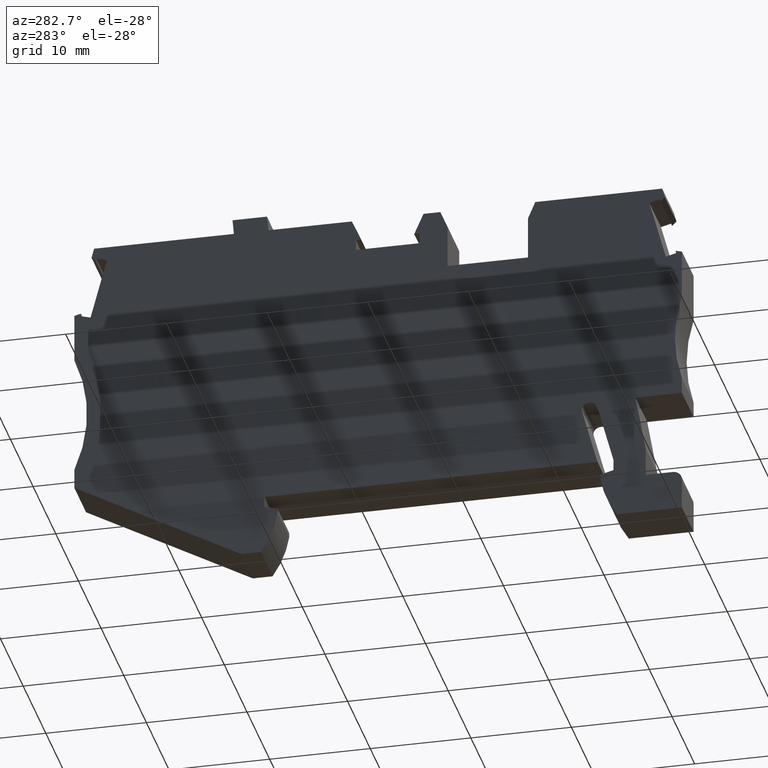
[diagram: clean part render]
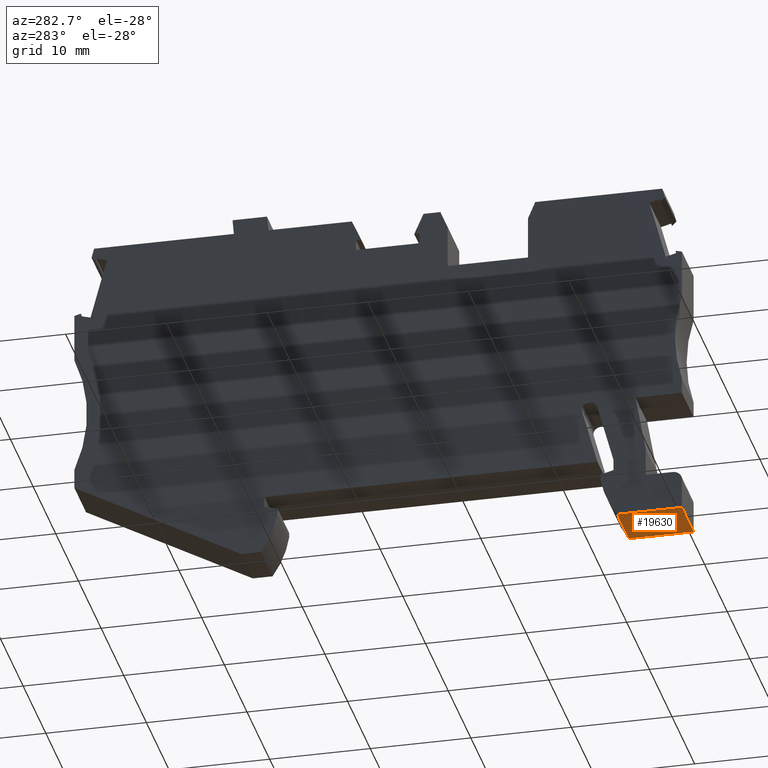
[diagram: same view with one face highlighted and labeled with its STEP entity id]
A machine part, auxiliary view. The second image highlights one B-rep face of the part: STEP entity #19630.
In plain terms, the highlighted planar face has unit normal (0, 0, -1).
Its self-contained STEP definition (entity closure, byte-faithful):
#3790=CARTESIAN_POINT('',(-15.9267764314572,-44.4000000000014,
53.6699999999896));
#3800=VERTEX_POINT('',#3790);
#3830=CARTESIAN_POINT('',(-35.0240117337573,-44.4000000000022,
53.6699999999873));
#3840=DIRECTION('',(1.,3.8219427622721E-14,1.20466137065733E-13));
#3850=VECTOR('',#3840,1.);
#3860=LINE('',#3830,#3850);
#3870=CARTESIAN_POINT('',(-22.3678327783247,-44.4000000000017,
53.6699999999888));
#3880=VERTEX_POINT('',#3870);
#3890=EDGE_CURVE('',#3880,#3800,#3860,.T.);
#7520=CARTESIAN_POINT('',(-22.3678327783247,-44.4000000000017,
48.5199999999973));
#7530=VERTEX_POINT('',#7520);
#7560=CARTESIAN_POINT('',(-35.0240117337573,-44.4000000000022,
48.5199999999973));
#7570=DIRECTION('',(-1.,-3.8219427622721E-14,0.));
#7580=VECTOR('',#7570,1.);
#7590=LINE('',#7560,#7580);
#7600=CARTESIAN_POINT('',(-15.9267764314572,-44.4000000000014,
48.5199999999973));
#7610=VERTEX_POINT('',#7600);
#7620=EDGE_CURVE('',#7610,#7530,#7590,.T.);
#19280=CARTESIAN_POINT('',(-22.3678327783247,-44.4000000000017,53.67));
#19290=DIRECTION('',(0.,0.,1.));
#19300=VECTOR('',#19290,1.);
#19310=LINE('',#19280,#19300);
#19320=EDGE_CURVE('',#7530,#3880,#19310,.T.);
#19470=CARTESIAN_POINT('',(-23.8928327783247,-44.4000000000018,53.67));
#19480=DIRECTION('',(3.8219427622721E-14,-1.,0.));
#19490=DIRECTION('',(-1.,-3.8219427622721E-14,0.));
#19500=AXIS2_PLACEMENT_3D('',#19470,#19480,#19490);
#19510=PLANE('',#19500);
#19520=CARTESIAN_POINT('',(-15.9267764314572,-44.4000000000014,53.67));
#19530=DIRECTION('',(0.,0.,1.));
#19540=VECTOR('',#19530,1.);
#19550=LINE('',#19520,#19540);
#19560=EDGE_CURVE('',#7610,#3800,#19550,.T.);
#19570=ORIENTED_EDGE('',*,*,#19560,.T.);
#19580=ORIENTED_EDGE('',*,*,#7620,.F.);
#19590=ORIENTED_EDGE('',*,*,#19320,.F.);
#19600=ORIENTED_EDGE('',*,*,#3890,.F.);
#19610=EDGE_LOOP('',(#19600,#19590,#19580,#19570));
#19620=FACE_OUTER_BOUND('',#19610,.T.);
#19630=ADVANCED_FACE('',(#19620),#19510,.T.);